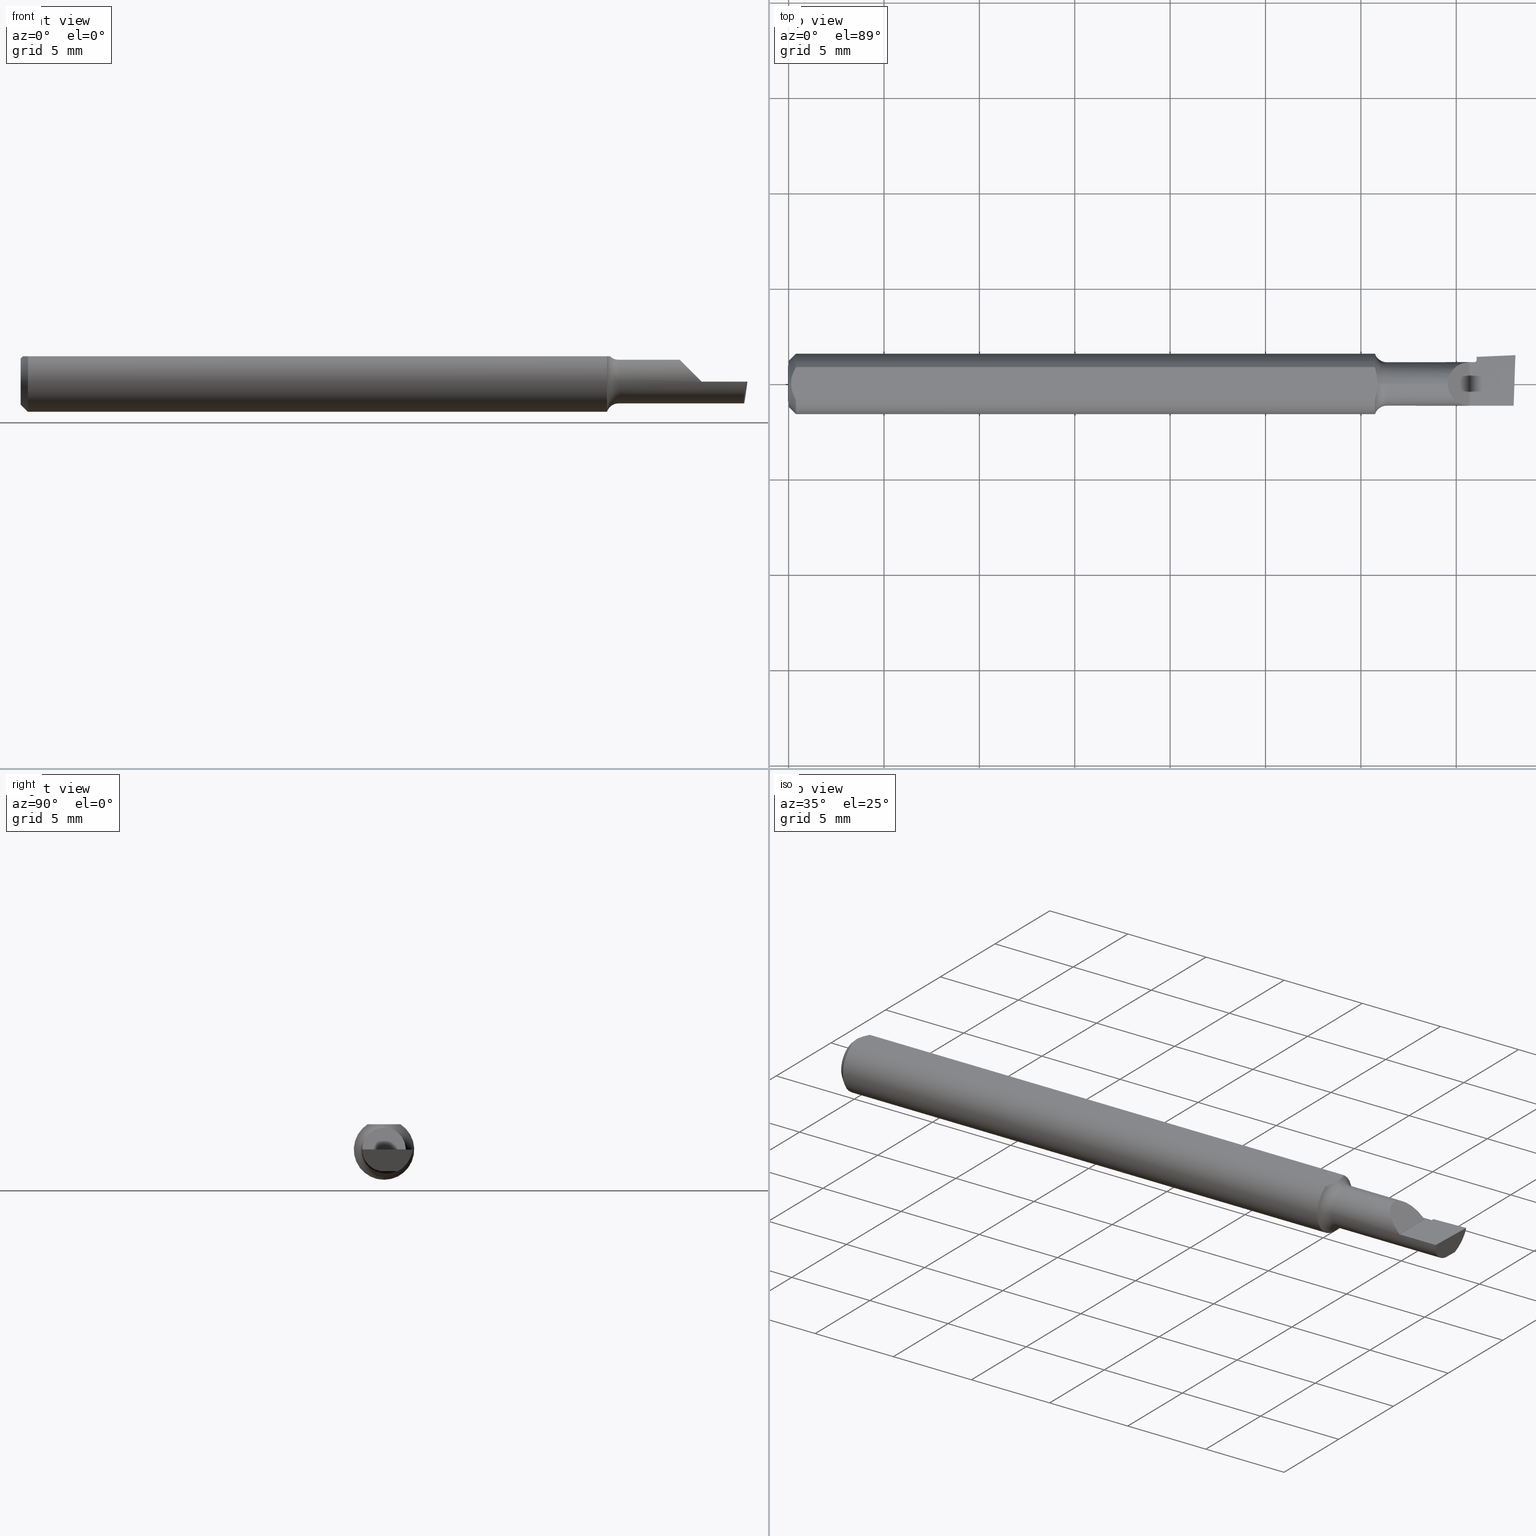
[diagram: canonical four-view strip — front | top / right | iso, engineering-drawing reading convention]
A machine part, canonical four-view strip (front | top / right | iso — engineering-drawing reading convention). The complete STEP part file that produces these views, byte-faithful:
ISO-10303-21;
HEADER;
FILE_DESCRIPTION (( 'STEP AP203' ),
    '1' );
FILE_NAME ('210201-BB102.STEP',
    '2024-04-17T20:57:02',
    ( '' ),
    ( '' ),
    'SwSTEP 2.0',
    'SolidWorks 2022',
    '' );
FILE_SCHEMA (( 'CONFIG_CONTROL_DESIGN' ));
ENDSEC;

DATA;
#1 = CARTESIAN_POINT ( 'NONE',  ( 1.439086209087548029, 0.06159508375131486635, -0.4962730758206618797 ) ) ;
#2 = EDGE_CURVE ( 'NONE', #540, #177, #97, .T. ) ;
#3 = DIRECTION ( 'NONE',  ( 1.000000000000000000, 0.000000000000000000, 0.000000000000000000 ) ) ;
#4 = DIRECTION ( 'NONE',  ( -1.000000000000000000, 0.000000000000000000, 0.000000000000000000 ) ) ;
#5 = CARTESIAN_POINT ( 'NONE',  ( 1.405000000000000249, -0.04499999999999999833, -1.868634782302818344E-17 ) ) ;
#6 = DIRECTION ( 'NONE',  ( 1.000000000000000000, 0.000000000000000000, 0.000000000000000000 ) ) ;
#7 = VECTOR ( 'NONE', #249, 39.37007874015748143 ) ;
#8 = CARTESIAN_POINT ( 'NONE',  ( 1.352999999999999980, 0.04793338999999999933, 0.05235000000000000764 ) ) ;
#9 = ORIENTED_EDGE ( 'NONE', *, *, #466, .T. ) ;
#10 = EDGE_CURVE ( 'NONE', #230, #332, #533, .T. ) ;
#11 = CARTESIAN_POINT ( 'NONE',  ( 0.000000000000000000, 0.000000000000000000, 0.04499999999999999833 ) ) ;
#12 = LINE ( 'NONE', #582, #58 ) ;
#13 =( NAMED_UNIT ( * ) PLANE_ANGLE_UNIT ( ) SI_UNIT ( $, .RADIAN. ) );
#14 = CARTESIAN_POINT ( 'NONE',  ( 1.420000000000000151, 0.000000000000000000, 0.000000000000000000 ) ) ;
#15 = AXIS2_PLACEMENT_3D ( 'NONE', #14, #211, #405 ) ;
#16 = CIRCLE ( 'NONE', #350, 0.06235000000000000264 ) ;
#17 = PERSON_AND_ORGANIZATION ( #194, #202 ) ;
#18 = FACE_OUTER_BOUND ( 'NONE', #138, .T. ) ;
#19 = ORIENTED_EDGE ( 'NONE', *, *, #190, .F. ) ;
#20 = CC_DESIGN_DATE_AND_TIME_ASSIGNMENT ( #178, #543, ( #308 ) ) ;
#21 = CARTESIAN_POINT ( 'NONE',  ( 1.216294704182079744, 0.005727781574962463422, 0.05235000000000000764 ) ) ;
#22 = VERTEX_POINT ( 'NONE', #380 ) ;
#23 = APPLICATION_PROTOCOL_DEFINITION ( 'international standard', 'config_control_design', 1994, #261 ) ;
#24 = CARTESIAN_POINT ( 'NONE',  ( 0.000000000000000000, 0.000000000000000000, 0.000000000000000000 ) ) ;
#25 = UNCERTAINTY_MEASURE_WITH_UNIT (LENGTH_MEASURE( 1.000000000000000082E-05 ), #597, 'distance_accuracy_value', 'NONE');
#26 = VERTEX_POINT ( 'NONE', #201 ) ;
#27 = ADVANCED_FACE ( 'NONE', ( #394 ), #528, .F. ) ;
#28 = CIRCLE ( 'NONE', #15, 0.04999999999999999584 ) ;
#29 = DATE_TIME_ROLE ( 'classification_date' ) ;
#30 = LOCAL_TIME ( 13, 57, 2.000000000000000000, #590 ) ;
#31 = DIRECTION ( 'NONE',  ( -1.000000000000000000, -0.000000000000000000, -0.000000000000000000 ) ) ;
#32 = ORIENTED_EDGE ( 'NONE', *, *, #161, .T. ) ;
#33 = MANIFOLD_SOLID_BREP ( 'CR-Radial Relief', #171 ) ;
#34 = ADVANCED_FACE ( 'NONE', ( #252 ), #149, .F. ) ;
#35 = DIRECTION ( 'NONE',  ( 1.000000000000000000, 0.000000000000000000, 0.000000000000000000 ) ) ;
#36 = ORIENTED_EDGE ( 'NONE', *, *, #224, .F. ) ;
#37 = DIRECTION ( 'NONE',  ( 0.000000000000000000, -1.224646799147353454E-16, 1.000000000000000000 ) ) ;
#38 = ORIENTED_EDGE ( 'NONE', *, *, #372, .T. ) ;
#39 = CARTESIAN_POINT ( 'NONE',  ( 1.420000000000000151, 0.02453648890686001630, -0.04499999999999994976 ) ) ;
#40 = CONICAL_SURFACE ( 'NONE', #391, 0.06235000000000000264, 0.7853981633974503884 ) ;
#41 = VERTEX_POINT ( 'NONE', #437 ) ;
#42 = EDGE_CURVE ( 'NONE', #26, #192, #12, .T. ) ;
#43 = CARTESIAN_POINT ( 'NONE',  ( 0.01500000000000134386, -0.03386738844375219992, 0.05235000000000000764 ) ) ;
#44 = ORIENTED_EDGE ( 'NONE', *, *, #300, .T. ) ;
#45 = APPROVAL_DATE_TIME ( #324, #517 ) ;
#46 = DIRECTION ( 'NONE',  ( -0.000000000000000000, 0.000000000000000000, 1.000000000000000000 ) ) ;
#47 = CARTESIAN_POINT ( 'NONE',  ( 1.378802680697162275, 0.04479487577709501817, 0.02654731930283728628 ) ) ;
#48 = CARTESIAN_POINT ( 'NONE',  ( 1.497408718177534404, 0.05935011133167062553, -1.920830620545185230E-17 ) ) ;
#49 = APPROVAL ( #174, 'UNSPECIFIED' ) ;
#50 = AXIS2_PLACEMENT_3D ( 'NONE', #373, #89, #428 ) ;
#51 = CARTESIAN_POINT ( 'NONE',  ( 0.01215148319993578432, 0.02862325741844273796, 0.05235000000000001458 ) ) ;
#52 = CARTESIAN_POINT ( 'NONE',  ( 1.233999999999999986, 0.000000000000000000, 0.07000000000000000666 ) ) ;
#53 = CARTESIAN_POINT ( 'NONE',  ( 0.01500000000000134386, -0.03386738844375219992, 0.05235000000000000764 ) ) ;
#54 = CARTESIAN_POINT ( 'NONE',  ( 1.492272597867730255, -0.003209992909856810607, -0.04499999999999994976 ) ) ;
#55 = DIRECTION ( 'NONE',  ( 0.1219375329434578548, 0.000000000000000000, 0.9925377766411024316 ) ) ;
#56 = FACE_OUTER_BOUND ( 'NONE', #233, .T. ) ;
#57 = CARTESIAN_POINT ( 'NONE',  ( 1.360350000000000170, -0.02619811172684342881, 0.04499999999999999833 ) ) ;
#58 = VECTOR ( 'NONE', #115, 39.37007874015748143 ) ;
#59 = VERTEX_POINT ( 'NONE', #576 ) ;
#60 = CIRCLE ( 'NONE', #285, 0.04734999999999860154 ) ;
#61 = EDGE_CURVE ( 'NONE', #367, #444, #399, .T. ) ;
#62 = EDGE_CURVE ( 'NONE', #378, #406, #141, .T. ) ;
#63 =( BOUNDED_CURVE ( )  B_SPLINE_CURVE ( 3, ( #397, #585, #127, #314 ),
 .UNSPECIFIED., .F., .T. ) 
 B_SPLINE_CURVE_WITH_KNOTS ( ( 4, 4 ),
 ( 4.195518992949612169, 5.146384001927089002 ),
 .UNSPECIFIED. ) 
 CURVE ( )  GEOMETRIC_REPRESENTATION_ITEM ( )  RATIONAL_B_SPLINE_CURVE ( ( 1.000000000000000000, 0.9260632250149676281, 0.9260632250149676281, 1.000000000000000000 ) ) 
 REPRESENTATION_ITEM ( '' )  );
#64 = LINE ( 'NONE', #478, #393 ) ;
#65 = DIRECTION ( 'NONE',  ( 1.000000000000000000, 0.000000000000000000, 0.000000000000000000 ) ) ;
#66 = DATE_AND_TIME ( #364, #30 ) ;
#67 = CARTESIAN_POINT ( 'NONE',  ( 1.405000000000000249, 0.000000000000000000, 0.000000000000000000 ) ) ;
#68 = ADVANCED_FACE ( 'NONE', ( #483 ), #560, .F. ) ;
#69 = DIRECTION ( 'NONE',  ( 0.000000000000000000, 0.000000000000000000, 1.000000000000000000 ) ) ;
#70 = CARTESIAN_POINT ( 'NONE',  ( 1.498778539966121537, 0.02797603424273678932, -0.04499999999999995670 ) ) ;
#71 = ORIENTED_EDGE ( 'NONE', *, *, #539, .T. ) ;
#72 = VECTOR ( 'NONE', #335, 39.37007874015748143 ) ;
#73 = CC_DESIGN_APPROVAL ( #355, ( #308 ) ) ;
#74 = B_SPLINE_CURVE_WITH_KNOTS ( 'NONE', 3,
 ( #535, #162, #490, #289, #108, #53 ),
 .UNSPECIFIED., .F., .F.,
 ( 4, 2, 4 ),
 ( 0.003138065481210369073, 0.003587221268395912946, 0.004036377055581456819 ),
 .UNSPECIFIED. ) ;
#75 = CARTESIAN_POINT ( 'NONE',  ( 1.210199212197912599, 0.03386738844375219298, 0.05235000000000000764 ) ) ;
#76 = ORIENTED_EDGE ( 'NONE', *, *, #84, .F. ) ;
#77 = CARTESIAN_POINT ( 'NONE',  ( 1.435446859173552969, -0.04340526729089896202, -0.4961638572300726135 ) ) ;
#78 = ORIENTED_EDGE ( 'NONE', *, *, #619, .T. ) ;
#79 = ADVANCED_FACE ( 'NONE', ( #538 ), #198, .F. ) ;
#80 = CALENDAR_DATE ( 2024, 17, 4 ) ;
#81 = CARTESIAN_POINT ( 'NONE',  ( 1.405000000000000249, 0.04499999999999999833, -1.868634782302818344E-17 ) ) ;
#82 = ADVANCED_BREP_SHAPE_REPRESENTATION ( '210201-BB102', ( #33, #424 ), #173 ) ;
#83 = EDGE_LOOP ( 'NONE', ( #413, #219, #458, #71, #605 ) ) ;
#84 = EDGE_CURVE ( 'NONE', #177, #444, #74, .T. ) ;
#85 = AXIS2_PLACEMENT_3D ( 'NONE', #269, #386, #239 ) ;
#86 = CC_DESIGN_SECURITY_CLASSIFICATION ( #103, ( #376 ) ) ;
#87 = LINE ( 'NONE', #447, #114 ) ;
#88 = VERTEX_POINT ( 'NONE', #579 ) ;
#89 = DIRECTION ( 'NONE',  ( -1.000000000000000000, -0.000000000000000000, -0.000000000000000000 ) ) ;
#90 = ORIENTED_EDGE ( 'NONE', *, *, #568, .T. ) ;
#91 = FACE_OUTER_BOUND ( 'NONE', #118, .T. ) ;
#92 = DIRECTION ( 'NONE',  ( 1.000000000000000000, -0.000000000000000000, -0.000000000000000000 ) ) ;
#93 = AXIS2_PLACEMENT_3D ( 'NONE', #573, #92, #472 ) ;
#94 = ORIENTED_EDGE ( 'NONE', *, *, #568, .F. ) ;
#95 = CARTESIAN_POINT ( 'NONE',  ( 1.417373594790450664, 0.007104973877921498190, -0.04499999999999993588 ) ) ;
#96 = ORIENTED_EDGE ( 'NONE', *, *, #459, .F. ) ;
#97 = B_SPLINE_CURVE_WITH_KNOTS ( 'NONE', 3,
 ( #479, #51, #281, #476, #435, #323 ),
 .UNSPECIFIED., .F., .F.,
 ( 4, 2, 4 ),
 ( 0.002239757098154139970, 0.002688911289682254738, 0.003138065481210369073 ),
 .UNSPECIFIED. ) ;
#98 = CARTESIAN_POINT ( 'NONE',  ( 1.491469573703458229, -0.02629326065177165980, -0.04500000000000010936 ) ) ;
#99 = ORIENTED_EDGE ( 'NONE', *, *, #154, .F. ) ;
#100 = CYLINDRICAL_SURFACE ( 'NONE', #580, 0.04499999999999999833 ) ;
#101 = TOROIDAL_SURFACE ( 'NONE', #172, 0.07000000000000000666, 0.02499999999999987302 ) ;
#102 = DIRECTION ( 'NONE',  ( 0.000000000000000000, 0.000000000000000000, 1.000000000000000000 ) ) ;
#103 = SECURITY_CLASSIFICATION ( '', '', #506 ) ;
#104 = B_SPLINE_CURVE_WITH_KNOTS ( 'NONE', 3,
 ( #121, #417, #266, #169, #176, #604 ),
 .UNSPECIFIED., .F., .F.,
 ( 4, 2, 4 ),
 ( 7.997048211592323728E-18, 0.0004371228731191618977, 0.0008742457462383155554 ),
 .UNSPECIFIED. ) ;
#105 = DIRECTION ( 'NONE',  ( 0.000000000000000000, -1.000000000000000000, 0.000000000000000000 ) ) ;
#106 = FACE_OUTER_BOUND ( 'NONE', #382, .T. ) ;
#107 = CARTESIAN_POINT ( 'NONE',  ( 0.01500000000000134212, 7.635672792683746671E-18, 0.06235000000000000264 ) ) ;
#108 = CARTESIAN_POINT ( 'NONE',  ( 0.01215371382284740828, -0.02862736400430402478, 0.05235000000000000764 ) ) ;
#109 = EDGE_CURVE ( 'NONE', #540, #406, #256, .T. ) ;
#110 = PRODUCT_DEFINITION_SHAPE ( 'NONE', 'NONE',  #308 ) ;
#111 = DIRECTION ( 'NONE',  ( 0.000000000000000000, 0.000000000000000000, -1.000000000000000000 ) ) ;
#112 = DIRECTION ( 'NONE',  ( 0.000000000000000000, 0.000000000000000000, -1.000000000000000000 ) ) ;
#113 = AXIS2_PLACEMENT_3D ( 'NONE', #157, #242, #4 ) ;
#114 = VECTOR ( 'NONE', #503, 39.37007874015748143 ) ;
#115 = DIRECTION ( 'NONE',  ( -1.000000000000000000, -0.000000000000000000, -0.000000000000000000 ) ) ;
#116 = ADVANCED_FACE ( 'NONE', ( #106 ), #302, .F. ) ;
#117 = MECHANICAL_CONTEXT ( 'NONE', #602, 'mechanical' ) ;
#118 = EDGE_LOOP ( 'NONE', ( #420, #237, #267, #371, #465 ) ) ;
#119 = B_SPLINE_CURVE_WITH_KNOTS ( 'NONE', 3,
 ( #431, #384, #95, #146, #232, #280 ),
 .UNSPECIFIED., .F., .F.,
 ( 4, 2, 4 ),
 ( -6.761656630398362563E-06, 0.0002785398825096111353, 0.0005638414216496206392 ),
 .UNSPECIFIED. ) ;
#120 = CC_DESIGN_PERSON_AND_ORGANIZATION_ASSIGNMENT ( #310, #502, ( #376 ) ) ;
#121 = CARTESIAN_POINT ( 'NONE',  ( 1.216294704182081743, 5.980258425352743234E-45, 0.05235000000000000764 ) ) ;
#122 = ORIENTED_EDGE ( 'NONE', *, *, #365, .F. ) ;
#123 = AXIS2_PLACEMENT_3D ( 'NONE', #52, #105, #445 ) ;
#124 = DIRECTION ( 'NONE',  ( 1.000000000000000000, 0.000000000000000000, 0.000000000000000000 ) ) ;
#125 = DIRECTION ( 'NONE',  ( 0.000000000000000000, 0.000000000000000000, 1.000000000000000000 ) ) ;
#126 = ORIENTED_EDGE ( 'NONE', *, *, #334, .T. ) ;
#127 = CARTESIAN_POINT ( 'NONE',  ( 1.497480812834090846, 0.05671465393456243120, -0.01957518843765980107 ) ) ;
#128 = ORIENTED_EDGE ( 'NONE', *, *, #619, .F. ) ;
#129 = EDGE_CURVE ( 'NONE', #230, #168, #238, .T. ) ;
#130 = DIRECTION ( 'NONE',  ( 1.000000000000000000, 1.790984261580614452E-17, -6.284155303791548068E-17 ) ) ;
#131 = ORIENTED_EDGE ( 'NONE', *, *, #84, .T. ) ;
#132 = AXIS2_PLACEMENT_3D ( 'NONE', #8, #438, #436 ) ;
#133 = AXIS2_PLACEMENT_3D ( 'NONE', #199, #392, #581 ) ;
#134 = DIRECTION ( 'NONE',  ( 0.000000000000000000, 0.000000000000000000, 1.000000000000000000 ) ) ;
#135 = ORIENTED_EDGE ( 'NONE', *, *, #334, .F. ) ;
#136 = EDGE_CURVE ( 'NONE', #332, #240, #359, .T. ) ;
#137 = DIRECTION ( 'NONE',  ( 0.000000000000000000, 0.000000000000000000, 1.000000000000000000 ) ) ;
#138 = EDGE_LOOP ( 'NONE', ( #90, #38, #226, #515, #260 ) ) ;
#139 = CARTESIAN_POINT ( 'NONE',  ( 0.000000000000000000, 0.000000000000000000, 0.000000000000000000 ) ) ;
#140 = ORIENTED_EDGE ( 'NONE', *, *, #584, .T. ) ;
#141 = CIRCLE ( 'NONE', #248, 0.06235000000000000264 ) ;
#142 = DIRECTION ( 'NONE',  ( -1.000000000000000000, 0.000000000000000000, 0.000000000000000000 ) ) ;
#143 = AXIS2_PLACEMENT_3D ( 'NONE', #304, #552, #409 ) ;
#144 = EDGE_CURVE ( 'NONE', #230, #240, #387, .T. ) ;
#145 = ORIENTED_EDGE ( 'NONE', *, *, #550, .F. ) ;
#146 = CARTESIAN_POINT ( 'NONE',  ( 1.419267150108719511, 0.01435586655772894821, -0.04499999999999993588 ) ) ;
#147 = ORIENTED_EDGE ( 'NONE', *, *, #346, .F. ) ;
#148 = CARTESIAN_POINT ( 'NONE',  ( 0.000000000000000000, 6.717187693323146747E-18, 0.04734999999999860154 ) ) ;
#149 = PLANE ( 'NONE',  #520 ) ;
#150 = CARTESIAN_POINT ( 'NONE',  ( 1.493102199893894255, -0.04491525817069149523, -0.02643775972283102238 ) ) ;
#151 = CIRCLE ( 'NONE', #220, 0.06235000000000000264 ) ;
#152 = CARTESIAN_POINT ( 'NONE',  ( 1.405000000000000249, 0.07629532499999999717, -1.868634782302818344E-17 ) ) ;
#153 = CC_DESIGN_APPROVAL ( #517, ( #103 ) ) ;
#154 = EDGE_CURVE ( 'NONE', #592, #521, #63, .T. ) ;
#155 = LINE ( 'NONE', #398, #287 ) ;
#156 = B_SPLINE_CURVE_WITH_KNOTS ( 'NONE', 3,
 ( #75, #496, #165, #311, #21, #369 ),
 .UNSPECIFIED., .F., .F.,
 ( 4, 2, 4 ),
 ( 0.008461957719256174570, 0.008892358141365519497, 0.009322758563474862689 ),
 .UNSPECIFIED. ) ;
#157 = CARTESIAN_POINT ( 'NONE',  ( 0.000000000000000000, 0.04793338999999999933, 0.05235000000000000764 ) ) ;
#158 = CARTESIAN_POINT ( 'NONE',  ( 1.420000000000000151, 0.02179449471770346022, -0.04499999999999994976 ) ) ;
#159 = DIRECTION ( 'NONE',  ( 0.000000000000000000, 0.000000000000000000, 1.000000000000000000 ) ) ;
#160 = EDGE_LOOP ( 'NONE', ( #94, #548, #470, #126, #283, #362 ) ) ;
#161 = EDGE_CURVE ( 'NONE', #59, #315, #203, .T. ) ;
#162 = CARTESIAN_POINT ( 'NONE',  ( 0.005000000000001387016, -0.005922428141025059233, 0.05235000000000002152 ) ) ;
#163 = VECTOR ( 'NONE', #547, 39.37007874015748854 ) ;
#164 = CALENDAR_DATE ( 2024, 17, 4 ) ;
#165 = CARTESIAN_POINT ( 'NONE',  ( 1.212665865278044652, 0.02264566276758899627, 0.05235000000000001458 ) ) ;
#166 = PERSON_AND_ORGANIZATION ( #194, #202 ) ;
#167 = LINE ( 'NONE', #357, #383 ) ;
#168 = VERTEX_POINT ( 'NONE', #81 ) ;
#169 = CARTESIAN_POINT ( 'NONE',  ( 1.212662726067923025, -0.02265753296402302913, 0.05235000000000000764 ) ) ;
#170 = ORIENTED_EDGE ( 'NONE', *, *, #224, .T. ) ;
#171 = CLOSED_SHELL ( 'NONE', ( #182, #175, #448, #333, #34, #395, #27, #295, #513, #234, #512, #505, #116, #415, #79, #68, #477 ) ) ;
#172 = AXIS2_PLACEMENT_3D ( 'NONE', #258, #507, #179 ) ;
#173 =( GEOMETRIC_REPRESENTATION_CONTEXT ( 3 ) GLOBAL_UNCERTAINTY_ASSIGNED_CONTEXT ( ( #25 ) ) GLOBAL_UNIT_ASSIGNED_CONTEXT ( ( #597, #13, #498 ) ) REPRESENTATION_CONTEXT ( 'NONE', 'WORKASPACE' ) );
#174 = APPROVAL_STATUS ( 'not_yet_approved' ) ;
#175 = ADVANCED_FACE ( 'NONE', ( #18 ), #101, .F. ) ;
#176 = CARTESIAN_POINT ( 'NONE',  ( 1.211183353785425298, -0.02823046378080374536, 0.05235000000000000070 ) ) ;
#177 = VERTEX_POINT ( 'NONE', #411 ) ;
#178 = DATE_AND_TIME ( #164, #450 ) ;
#179 = DIRECTION ( 'NONE',  ( 0.000000000000000000, 0.000000000000000000, 1.000000000000000000 ) ) ;
#180 = ORIENTED_EDGE ( 'NONE', *, *, #288, .T. ) ;
#181 = PLANE ( 'NONE',  #337 ) ;
#182 = ADVANCED_FACE ( 'NONE', ( #222 ), #557, .T. ) ;
#183 = ORIENTED_EDGE ( 'NONE', *, *, #345, .T. ) ;
#184 = CC_DESIGN_PERSON_AND_ORGANIZATION_ASSIGNMENT ( #17, #213, ( #492 ) ) ;
#185 = VECTOR ( 'NONE', #218, 39.37007874015748854 ) ;
#186 = LOCAL_TIME ( 13, 57, 2.000000000000000000, #356 ) ;
#187 = DIRECTION ( 'NONE',  ( -0.000000000000000000, -0.000000000000000000, -1.000000000000000000 ) ) ;
#188 = CARTESIAN_POINT ( 'NONE',  ( 1.420000000000000151, 0.05597037370670018830, -1.894732701424001633E-17 ) ) ;
#189 = ORIENTED_EDGE ( 'NONE', *, *, #42, .T. ) ;
#190 = EDGE_CURVE ( 'NONE', #88, #215, #500, .T. ) ;
#191 = CARTESIAN_POINT ( 'NONE',  ( 1.420000000000000151, 0.04499999999999999833, 0.000000000000000000 ) ) ;
#192 = VERTEX_POINT ( 'NONE', #600 ) ;
#193 = AXIS2_PLACEMENT_3D ( 'NONE', #139, #565, #325 ) ;
#194 = PERSON ( 'UNSPECIFIED', 'UNSPECIFIED', 'UNSPECIFIED', ('UNSPECIFIED'), ('UNSPECIFIED'), ('UNSPECIFIED') ) ;
#195 = CARTESIAN_POINT ( 'NONE',  ( 0.000000000000000000, 0.04499999999999999833, -1.868634782302818344E-17 ) ) ;
#196 = CARTESIAN_POINT ( 'NONE',  ( 1.496329483393618709, -0.04499976756329679417, -0.0001446348825885092598 ) ) ;
#197 = FACE_OUTER_BOUND ( 'NONE', #553, .T. ) ;
#198 = PLANE ( 'NONE',  #433 ) ;
#199 = CARTESIAN_POINT ( 'NONE',  ( 1.233999999999999986, 0.000000000000000000, 0.000000000000000000 ) ) ;
#200 = CIRCLE ( 'NONE', #93, 0.06235000000000000264 ) ;
#201 = CARTESIAN_POINT ( 'NONE',  ( 1.415000000000000036, 1.824590875493064959E-16, -0.04499999999999993588 ) ) ;
#202 = ORGANIZATION ( 'UNSPECIFIED', 'UNSPECIFIED', '' ) ;
#203 = LINE ( 'NONE', #77, #163 ) ;
#204 = EDGE_LOOP ( 'NONE', ( #570, #309, #469, #330, #278 ) ) ;
#205 = CARTESIAN_POINT ( 'NONE',  ( 1.493349255586110091, 0.02773898656738708543, -0.04499999999999995670 ) ) ;
#206 = DIRECTION ( 'NONE',  ( -1.000000000000000000, 0.000000000000000000, 0.000000000000000000 ) ) ;
#207 = ORIENTED_EDGE ( 'NONE', *, *, #129, .T. ) ;
#208 = FACE_OUTER_BOUND ( 'NONE', #558, .T. ) ;
#209 = AXIS2_PLACEMENT_3D ( 'NONE', #360, #31, #366 ) ;
#210 = APPROVAL_DATE_TIME ( #313, #355 ) ;
#211 = DIRECTION ( 'NONE',  ( 1.000000000000000000, 0.000000000000000000, 0.000000000000000000 ) ) ;
#212 = ORIENTED_EDGE ( 'NONE', *, *, #255, .F. ) ;
#213 = PERSON_AND_ORGANIZATION_ROLE ( 'design_owner' ) ;
#214 = CARTESIAN_POINT ( 'NONE',  ( 0.000000000000000000, 0.000000000000000000, 0.000000000000000000 ) ) ;
#215 = VERTEX_POINT ( 'NONE', #509 ) ;
#216 = EDGE_CURVE ( 'NONE', #22, #367, #104, .T. ) ;
#217 = CALENDAR_DATE ( 2024, 17, 4 ) ;
#218 = DIRECTION ( 'NONE',  ( 0.7071067811865460184, 0.000000000000000000, -0.7071067811865489050 ) ) ;
#219 = ORIENTED_EDGE ( 'NONE', *, *, #62, .T. ) ;
#220 = AXIS2_PLACEMENT_3D ( 'NONE', #425, #331, #514 ) ;
#221 = PERSON_AND_ORGANIZATION ( #194, #202 ) ;
#222 = FACE_OUTER_BOUND ( 'NONE', #321, .T. ) ;
#223 = EDGE_LOOP ( 'NONE', ( #491, #358, #497, #135, #19 ) ) ;
#224 = EDGE_CURVE ( 'NONE', #556, #26, #328, .T. ) ;
#225 = CARTESIAN_POINT ( 'NONE',  ( 1.233999999999999986, 8.572527594031471957E-18, -0.07000000000000000666 ) ) ;
#226 = ORIENTED_EDGE ( 'NONE', *, *, #346, .T. ) ;
#227 = DIRECTION ( 'NONE',  ( 0.000000000000000000, 0.000000000000000000, -1.000000000000000000 ) ) ;
#228 = ORIENTED_EDGE ( 'NONE', *, *, #440, .F. ) ;
#229 = CARTESIAN_POINT ( 'NONE',  ( 1.420000000000000151, 0.04201724781223283717, -0.03577278660894834400 ) ) ;
#230 = VERTEX_POINT ( 'NONE', #451 ) ;
#231 = CALENDAR_DATE ( 2024, 17, 4 ) ;
#232 = CARTESIAN_POINT ( 'NONE',  ( 1.419999999999999929, 0.01802711815188125927, -0.04499999999999995670 ) ) ;
#233 = EDGE_LOOP ( 'NONE', ( #566, #305, #456 ) ) ;
#234 = ADVANCED_FACE ( 'NONE', ( #403 ), #480, .F. ) ;
#235 = EDGE_CURVE ( 'NONE', #518, #88, #60, .T. ) ;
#236 = DIRECTION ( 'NONE',  ( 0.03476711780021052994, 0.9993954410141494549, 0.000000000000000000 ) ) ;
#237 = ORIENTED_EDGE ( 'NONE', *, *, #279, .T. ) ;
#238 = CIRCLE ( 'NONE', #361, 0.04499999999999999833 ) ;
#239 = DIRECTION ( 'NONE',  ( 0.000000000000000000, 0.000000000000000000, -1.000000000000000000 ) ) ;
#240 = VERTEX_POINT ( 'NONE', #455 ) ;
#241 = CYLINDRICAL_SURFACE ( 'NONE', #598, 0.05994289329491143958 ) ;
#242 = DIRECTION ( 'NONE',  ( -0.000000000000000000, 0.000000000000000000, -1.000000000000000000 ) ) ;
#243 = CC_DESIGN_PERSON_AND_ORGANIZATION_ASSIGNMENT ( #603, #546, ( #308 ) ) ;
#244 = DIRECTION ( 'NONE',  ( -1.000000000000000000, -0.000000000000000000, -0.000000000000000000 ) ) ;
#245 = DIRECTION ( 'NONE',  ( -0.000000000000000000, 0.000000000000000000, -1.000000000000000000 ) ) ;
#246 = CC_DESIGN_DATE_AND_TIME_ASSIGNMENT ( #254, #29, ( #103 ) ) ;
#247 = DIRECTION ( 'NONE',  ( -1.000000000000000000, -0.000000000000000000, -0.000000000000000000 ) ) ;
#248 = AXIS2_PLACEMENT_3D ( 'NONE', #439, #6, #112 ) ;
#249 = DIRECTION ( 'NONE',  ( 0.000000000000000000, -1.000000000000000000, 0.000000000000000000 ) ) ;
#250 = EDGE_CURVE ( 'NONE', #406, #22, #156, .T. ) ;
#251 = DIRECTION ( 'NONE',  ( -0.000000000000000000, 1.000000000000000000, -0.000000000000000000 ) ) ;
#252 = FACE_OUTER_BOUND ( 'NONE', #501, .T. ) ;
#253 = ORIENTED_EDGE ( 'NONE', *, *, #136, .F. ) ;
#254 = DATE_AND_TIME ( #80, #186 ) ;
#255 = EDGE_CURVE ( 'NONE', #452, #426, #28, .T. ) ;
#256 = LINE ( 'NONE', #294, #298 ) ;
#257 = LENGTH_MEASURE_WITH_UNIT ( LENGTH_MEASURE( 0.02539999999999999897 ), #493 );
#258 = CARTESIAN_POINT ( 'NONE',  ( 1.233999999999999986, 0.000000000000000000, 0.000000000000000000 ) ) ;
#259 = AXIS2_PLACEMENT_3D ( 'NONE', #225, #468, #37 ) ;
#260 = ORIENTED_EDGE ( 'NONE', *, *, #216, .T. ) ;
#261 = APPLICATION_CONTEXT ( 'configuration controlled 3d designs of mechanical parts and assemblies' ) ;
#262 = ORIENTED_EDGE ( 'NONE', *, *, #577, .T. ) ;
#263 = CARTESIAN_POINT ( 'NONE',  ( 0.01500000000000134212, 0.000000000000000000, -0.06235000000000000264 ) ) ;
#264 = VERTEX_POINT ( 'NONE', #555 ) ;
#265 = APPROVAL_ROLE ( '' ) ;
#266 = CARTESIAN_POINT ( 'NONE',  ( 1.215248991601179496, -0.01145844255424206121, 0.05235000000000001458 ) ) ;
#267 = ORIENTED_EDGE ( 'NONE', *, *, #474, .T. ) ;
#268 = CONICAL_SURFACE ( 'NONE', #85, 0.06235000000000000264, 0.7853981633974503884 ) ;
#269 = CARTESIAN_POINT ( 'NONE',  ( 0.01500000000000134212, 0.000000000000000000, 0.000000000000000000 ) ) ;
#270 = ORIENTED_EDGE ( 'NONE', *, *, #326, .T. ) ;
#271 = FACE_OUTER_BOUND ( 'NONE', #340, .T. ) ;
#272 = VERTEX_POINT ( 'NONE', #591 ) ;
#273 = DIRECTION ( 'NONE',  ( 0.000000000000000000, -1.000000000000000000, 2.151128098472149687E-16 ) ) ;
#274 = VERTEX_POINT ( 'NONE', #353 ) ;
#275 = AXIS2_PLACEMENT_3D ( 'NONE', #24, #277, #227 ) ;
#276 = APPROVAL_PERSON_ORGANIZATION ( #221, #517, #495 ) ;
#277 = DIRECTION ( 'NONE',  ( 1.000000000000000000, 0.000000000000000000, 0.000000000000000000 ) ) ;
#278 = ORIENTED_EDGE ( 'NONE', *, *, #459, .T. ) ;
#279 = EDGE_CURVE ( 'NONE', #264, #592, #457, .T. ) ;
#280 = CARTESIAN_POINT ( 'NONE',  ( 1.420000000000000151, 0.02179449471770346022, -0.04499999999999994976 ) ) ;
#281 = CARTESIAN_POINT ( 'NONE',  ( 0.009665130484206837028, 0.02321408954762991736, 0.05235000000000001458 ) ) ;
#282 = DIRECTION ( 'NONE',  ( -0.04361938736533653438, 0.9990482215818576872, 0.000000000000000000 ) ) ;
#283 = ORIENTED_EDGE ( 'NONE', *, *, #109, .T. ) ;
#284 = EDGE_CURVE ( 'NONE', #26, #272, #167, .T. ) ;
#285 = AXIS2_PLACEMENT_3D ( 'NONE', #214, #461, #316 ) ;
#286 = DIRECTION ( 'NONE',  ( 0.000000000000000000, 0.000000000000000000, 1.000000000000000000 ) ) ;
#287 = VECTOR ( 'NONE', #586, 39.37007874015748143 ) ;
#288 = EDGE_CURVE ( 'NONE', #426, #41, #87, .T. ) ;
#289 = CARTESIAN_POINT ( 'NONE',  ( 0.009663423781324993397, -0.02320891702790696398, 0.05234999999999998682 ) ) ;
#290 = LINE ( 'NONE', #107, #571 ) ;
#291 = CARTESIAN_POINT ( 'NONE',  ( 1.360350000000000170, 0.000000000000000000, 0.04499999999999999833 ) ) ;
#292 = ORIENTED_EDGE ( 'NONE', *, *, #524, .F. ) ;
#293 = CARTESIAN_POINT ( 'NONE',  ( 1.500000000000000222, 1.707404996040164512E-17, 0.008000000000000000167 ) ) ;
#294 = CARTESIAN_POINT ( 'NONE',  ( 1.500000000000000222, 0.03386738844375219298, 0.05235000000000000764 ) ) ;
#295 = ADVANCED_FACE ( 'NONE', ( #208 ), #544, .F. ) ;
#296 = ORIENTED_EDGE ( 'NONE', *, *, #430, .T. ) ;
#297 = CARTESIAN_POINT ( 'NONE',  ( 1.415000000000000036, 0.04499999999999999833, -1.868634782302818344E-17 ) ) ;
#298 = VECTOR ( 'NONE', #65, 39.37007874015748143 ) ;
#299 = DIRECTION ( 'NONE',  ( -1.000000000000000000, -0.000000000000000000, -0.000000000000000000 ) ) ;
#300 = EDGE_CURVE ( 'NONE', #609, #240, #549, .T. ) ;
#301 = PERSON_AND_ORGANIZATION ( #194, #202 ) ;
#302 = PLANE ( 'NONE',  #412 ) ;
#303 = APPROVAL_DATE_TIME ( #66, #49 ) ;
#304 = CARTESIAN_POINT ( 'NONE',  ( 1.415000000000000036, 0.000000000000000000, 0.000000000000000000 ) ) ;
#305 = ORIENTED_EDGE ( 'NONE', *, *, #10, .T. ) ;
#306 = PERSON_AND_ORGANIZATION ( #194, #202 ) ;
#307 = DIRECTION ( 'NONE',  ( -1.000000000000000000, -0.000000000000000000, -0.000000000000000000 ) ) ;
#308 = PRODUCT_DEFINITION ( 'UNKNOWN', '', #376, #370 ) ;
#309 = ORIENTED_EDGE ( 'NONE', *, *, #154, .T. ) ;
#310 = PERSON_AND_ORGANIZATION ( #194, #202 ) ;
#311 = CARTESIAN_POINT ( 'NONE',  ( 1.215252698412093046, 0.01144066343224819926, 0.05234999999999998682 ) ) ;
#312 = ORIENTED_EDGE ( 'NONE', *, *, #300, .F. ) ;
#313 = DATE_AND_TIME ( #217, #530 ) ;
#314 = CARTESIAN_POINT ( 'NONE',  ( 1.499981299026331705, 0.05946243263723752226, -1.868634782302818344E-17 ) ) ;
#315 = VERTEX_POINT ( 'NONE', #567 ) ;
#316 = DIRECTION ( 'NONE',  ( 0.000000000000000000, 0.000000000000000000, -1.000000000000000000 ) ) ;
#317 = ORIENTED_EDGE ( 'NONE', *, *, #216, .F. ) ;
#318 = VECTOR ( 'NONE', #35, 39.37007874015748143 ) ;
#319 = VECTOR ( 'NONE', #244, 39.37007874015748143 ) ;
#320 = DIRECTION ( 'NONE',  ( -1.000000000000000000, -0.000000000000000000, -0.000000000000000000 ) ) ;
#321 = EDGE_LOOP ( 'NONE', ( #170, #189, #385, #473, #354, #207, #511 ) ) ;
#322 = CARTESIAN_POINT ( 'NONE',  ( 1.400000000000000133, 1.839814241716499984E-16, -0.04499999999999994976 ) ) ;
#323 = CARTESIAN_POINT ( 'NONE',  ( 0.005000000000001387016, 6.414153026140964483E-18, 0.05235000000000000764 ) ) ;
#324 = DATE_AND_TIME ( #231, #599 ) ;
#325 = DIRECTION ( 'NONE',  ( 0.000000000000000000, 0.000000000000000000, -1.000000000000000000 ) ) ;
#326 = EDGE_CURVE ( 'NONE', #426, #556, #349, .T. ) ;
#327 = CARTESIAN_POINT ( 'NONE',  ( 1.405000000000000249, 0.04499863886830356152, 0.0003499999999995775913 ) ) ;
#328 = CIRCLE ( 'NONE', #143, 0.04499999999999999833 ) ;
#329 = LINE ( 'NONE', #516, #499 ) ;
#330 = ORIENTED_EDGE ( 'NONE', *, *, #161, .F. ) ;
#331 = DIRECTION ( 'NONE',  ( 1.000000000000000000, -0.000000000000000000, -0.000000000000000000 ) ) ;
#332 = VERTEX_POINT ( 'NONE', #381 ) ;
#333 = ADVANCED_FACE ( 'NONE', ( #271 ), #475, .T. ) ;
#334 = EDGE_CURVE ( 'NONE', #215, #540, #151, .T. ) ;
#335 = DIRECTION ( 'NONE',  ( -0.9990482215818576872, -0.04361938736533620825, 0.000000000000000000 ) ) ;
#336 = DIRECTION ( 'NONE',  ( -0.9919466430058313522, 0.03450798790307755409, 0.1218649096349841143 ) ) ;
#337 = AXIS2_PLACEMENT_3D ( 'NONE', #322, #615, #273 ) ;
#338 = DIRECTION ( 'NONE',  ( 0.9990482215818577982, 0.04361938736533620825, -0.000000000000000000 ) ) ;
#339 = DIRECTION ( 'NONE',  ( -1.000000000000000000, 0.000000000000000000, -0.000000000000000000 ) ) ;
#340 = EDGE_LOOP ( 'NONE', ( #526, #292, #374, #180 ) ) ;
#341 = CARTESIAN_POINT ( 'NONE',  ( 1.210199212197912599, 0.000000000000000000, 0.000000000000000000 ) ) ;
#342 = CARTESIAN_POINT ( 'NONE',  ( 1.405000000000000249, 0.07629532499999999717, -1.868634782302818344E-17 ) ) ;
#343 = DIRECTION ( 'NONE',  ( 0.000000000000000000, 1.000000000000000000, -2.151128098472149687E-16 ) ) ;
#344 = CARTESIAN_POINT ( 'NONE',  ( 1.378802680697162275, -0.04479487577709500429, 0.02654731930283730015 ) ) ;
#345 = EDGE_CURVE ( 'NONE', #315, #521, #329, .T. ) ;
#346 = EDGE_CURVE ( 'NONE', #192, #274, #488, .T. ) ;
#347 = EDGE_LOOP ( 'NONE', ( #607, #614, #96, #32, #78, #44, #253, #140, #147 ) ) ;
#348 = LINE ( 'NONE', #54, #616 ) ;
#349 = CIRCLE ( 'NONE', #375, 0.005000000000000083371 ) ;
#350 = AXIS2_PLACEMENT_3D ( 'NONE', #341, #3, #111 ) ;
#351 = CARTESIAN_POINT ( 'NONE',  ( 1.500000000000000222, -0.03386738844375219298, 0.05235000000000000764 ) ) ;
#352 = PERSON_AND_ORGANIZATION_ROLE ( 'classification_officer' ) ;
#353 = CARTESIAN_POINT ( 'NONE',  ( 1.233999999999999986, 0.000000000000000000, 0.04499999999999999140 ) ) ;
#354 = ORIENTED_EDGE ( 'NONE', *, *, #10, .F. ) ;
#355 = APPROVAL ( #554, 'UNSPECIFIED' ) ;
#356 = COORDINATED_UNIVERSAL_TIME_OFFSET ( 8, 0, .BEHIND. ) ;
#357 = CARTESIAN_POINT ( 'NONE',  ( 1.420000000000000151, 1.825486367623855226E-16, -0.04499999999999993588 ) ) ;
#358 = ORIENTED_EDGE ( 'NONE', *, *, #550, .T. ) ;
#359 =( BOUNDED_CURVE ( )  B_SPLINE_CURVE ( 3, ( #291, #57, #344, #443 ),
 .UNSPECIFIED., .F., .T. ) 
 B_SPLINE_CURVE_WITH_KNOTS ( ( 4, 4 ),
 ( 0.000000000000000000, 1.563018470597068443 ),
 .UNSPECIFIED. ) 
 CURVE ( )  GEOMETRIC_REPRESENTATION_ITEM ( )  RATIONAL_B_SPLINE_CURVE ( ( 1.000000000000000000, 0.8065675430899280629, 0.8065675430899280629, 1.000000000000000000 ) ) 
 REPRESENTATION_ITEM ( '' )  );
#360 = CARTESIAN_POINT ( 'NONE',  ( 0.000000000000000000, 0.000000000000000000, 0.000000000000000000 ) ) ;
#361 = AXIS2_PLACEMENT_3D ( 'NONE', #67, #485, #159 ) ;
#362 = ORIENTED_EDGE ( 'NONE', *, *, #62, .F. ) ;
#363 = APPROVAL_PERSON_ORGANIZATION ( #400, #355, #265 ) ;
#364 = CALENDAR_DATE ( 2024, 17, 4 ) ;
#365 = EDGE_CURVE ( 'NONE', #168, #556, #610, .T. ) ;
#366 = DIRECTION ( 'NONE',  ( 0.000000000000000000, 0.000000000000000000, 1.000000000000000000 ) ) ;
#367 = VERTEX_POINT ( 'NONE', #522 ) ;
#368 = SHAPE_DEFINITION_REPRESENTATION ( #110, #82 ) ;
#369 = CARTESIAN_POINT ( 'NONE',  ( 1.216294704182081743, 5.980258425352743234E-45, 0.05235000000000000764 ) ) ;
#370 = DESIGN_CONTEXT ( 'detailed design', #261, 'design' ) ;
#371 = ORIENTED_EDGE ( 'NONE', *, *, #284, .F. ) ;
#372 = EDGE_CURVE ( 'NONE', #378, #192, #462, .T. ) ;
#373 = CARTESIAN_POINT ( 'NONE',  ( 1.500000000000000222, 0.000000000000000000, 0.000000000000000000 ) ) ;
#374 = ORIENTED_EDGE ( 'NONE', *, *, #255, .T. ) ;
#375 = AXIS2_PLACEMENT_3D ( 'NONE', #559, #187, #142 ) ;
#376 = PRODUCT_DEFINITION_FORMATION_WITH_SPECIFIED_SOURCE ( 'ANY', '', #492, .NOT_KNOWN. ) ;
#377 = DIRECTION ( 'NONE',  ( -1.000000000000000000, 0.000000000000000000, -0.000000000000000000 ) ) ;
#378 = VERTEX_POINT ( 'NONE', #419 ) ;
#379 = CARTESIAN_POINT ( 'NONE',  ( 1.420000000000000151, 0.04999999999999999584, -1.868634782302818344E-17 ) ) ;
#380 = CARTESIAN_POINT ( 'NONE',  ( 1.216294704182081743, 5.980258425352743234E-45, 0.05235000000000000764 ) ) ;
#381 = CARTESIAN_POINT ( 'NONE',  ( 1.360350000000000170, 0.000000000000000000, 0.04499999999999999833 ) ) ;
#382 = EDGE_LOOP ( 'NONE', ( #463, #545, #312, #262 ) ) ;
#383 = VECTOR ( 'NONE', #130, 39.37007874015748143 ) ;
#384 = CARTESIAN_POINT ( 'NONE',  ( 1.416183951253396245, 0.003551992992401269145, -0.04499999999999995670 ) ) ;
#385 = ORIENTED_EDGE ( 'NONE', *, *, #612, .F. ) ;
#386 = DIRECTION ( 'NONE',  ( 1.000000000000000000, -0.000000000000000000, -0.000000000000000000 ) ) ;
#387 = LINE ( 'NONE', #532, #7 ) ;
#388 = PRODUCT_RELATED_PRODUCT_CATEGORY ( 'detail', '', ( #492 ) ) ;
#389 = CARTESIAN_POINT ( 'NONE',  ( 0.000000000000000000, 0.000000000000000000, 0.000000000000000000 ) ) ;
#390 = CARTESIAN_POINT ( 'NONE',  ( 1.360350000000000170, 0.000000000000000000, 0.04499999999999999833 ) ) ;
#391 = AXIS2_PLACEMENT_3D ( 'NONE', #481, #434, #531 ) ;
#392 = DIRECTION ( 'NONE',  ( -1.000000000000000000, -0.000000000000000000, -0.000000000000000000 ) ) ;
#393 = VECTOR ( 'NONE', #251, 39.37007874015748143 ) ;
#394 = FACE_OUTER_BOUND ( 'NONE', #617, .T. ) ;
#395 = ADVANCED_FACE ( 'NONE', ( #519 ), #606, .T. ) ;
#396 = FACE_OUTER_BOUND ( 'NONE', #347, .T. ) ;
#397 = CARTESIAN_POINT ( 'NONE',  ( 1.493349255586110091, 0.02773898656738708543, -0.04499999999999995670 ) ) ;
#398 = CARTESIAN_POINT ( 'NONE',  ( 0.000000000000000000, -0.04499999999999999833, -1.868634782302818344E-17 ) ) ;
#399 = LINE ( 'NONE', #351, #487 ) ;
#400 = PERSON_AND_ORGANIZATION ( #194, #202 ) ;
#401 = CIRCLE ( 'NONE', #193, 0.04734999999999860154 ) ;
#402 = EDGE_CURVE ( 'NONE', #26, #452, #119, .T. ) ;
#403 = FACE_OUTER_BOUND ( 'NONE', #83, .T. ) ;
#404 = APPROVAL_ROLE ( '' ) ;
#405 = DIRECTION ( 'NONE',  ( 0.000000000000000000, -1.776356839400250465E-15, 1.000000000000000000 ) ) ;
#406 = VERTEX_POINT ( 'NONE', #421 ) ;
#407 = CC_DESIGN_PERSON_AND_ORGANIZATION_ASSIGNMENT ( #301, #593, ( #376 ) ) ;
#408 = COORDINATED_UNIVERSAL_TIME_OFFSET ( 8, 0, .BEHIND. ) ;
#409 = DIRECTION ( 'NONE',  ( 0.000000000000000000, 0.000000000000000000, 1.000000000000000000 ) ) ;
#410 = EDGE_LOOP ( 'NONE', ( #429, #212, #536, #36 ) ) ;
#411 = CARTESIAN_POINT ( 'NONE',  ( 0.005000000000001387016, 6.414153026140964483E-18, 0.05235000000000000764 ) ) ;
#412 = AXIS2_PLACEMENT_3D ( 'NONE', #152, #339, #494 ) ;
#413 = ORIENTED_EDGE ( 'NONE', *, *, #372, .F. ) ;
#414 = APPROVAL_STATUS ( 'not_yet_approved' ) ;
#415 = ADVANCED_FACE ( 'NONE', ( #91 ), #181, .F. ) ;
#416 = EDGE_CURVE ( 'NONE', #264, #41, #594, .T. ) ;
#417 = CARTESIAN_POINT ( 'NONE',  ( 1.216294704182079967, -0.005817244152261689429, 0.05235000000000001458 ) ) ;
#418 = ORIENTED_EDGE ( 'NONE', *, *, #288, .F. ) ;
#419 = CARTESIAN_POINT ( 'NONE',  ( 1.210199212197912599, 7.635672792683735886E-18, -0.06234999999999991938 ) ) ;
#420 = ORIENTED_EDGE ( 'NONE', *, *, #524, .T. ) ;
#421 = CARTESIAN_POINT ( 'NONE',  ( 1.210199212197912599, 0.03386738844375219298, 0.05235000000000000764 ) ) ;
#422 = ORIENTED_EDGE ( 'NONE', *, *, #430, .F. ) ;
#423 = CIRCLE ( 'NONE', #123, 0.02499999999999986955 ) ;
#424 = AXIS2_PLACEMENT_3D ( 'NONE', #460, #69, #124 ) ;
#425 = CARTESIAN_POINT ( 'NONE',  ( 0.01500000000000134212, 0.000000000000000000, 0.000000000000000000 ) ) ;
#426 = VERTEX_POINT ( 'NONE', #379 ) ;
#427 = COORDINATED_UNIVERSAL_TIME_OFFSET ( 8, 0, .BEHIND. ) ;
#428 = DIRECTION ( 'NONE',  ( 0.000000000000000000, 0.000000000000000000, 1.000000000000000000 ) ) ;
#429 = ORIENTED_EDGE ( 'NONE', *, *, #326, .F. ) ;
#430 = EDGE_CURVE ( 'NONE', #88, #518, #401, .T. ) ;
#431 = CARTESIAN_POINT ( 'NONE',  ( 1.415000000000000036, 1.824590875493064959E-16, -0.04499999999999993588 ) ) ;
#432 = ORIENTED_EDGE ( 'NONE', *, *, #109, .F. ) ;
#433 = AXIS2_PLACEMENT_3D ( 'NONE', #1, #336, #55 ) ;
#434 = DIRECTION ( 'NONE',  ( 1.000000000000000000, -0.000000000000000000, -0.000000000000000000 ) ) ;
#435 = CARTESIAN_POINT ( 'NONE',  ( 0.005000000000001388750, 0.005922407101183794174, 0.05235000000000000070 ) ) ;
#436 = DIRECTION ( 'NONE',  ( -0.7071067811865456854, 0.000000000000000000, 0.7071067811865493491 ) ) ;
#437 = CARTESIAN_POINT ( 'NONE',  ( 1.420000000000000151, 0.05597037370670018830, -1.894732701424001633E-17 ) ) ;
#438 = DIRECTION ( 'NONE',  ( -0.7071067811865493491, 0.000000000000000000, -0.7071067811865456854 ) ) ;
#439 = CARTESIAN_POINT ( 'NONE',  ( 1.210199212197912599, 0.000000000000000000, 0.000000000000000000 ) ) ;
#440 = EDGE_CURVE ( 'NONE', #444, #215, #200, .T. ) ;
#441 = VECTOR ( 'NONE', #343, 39.37007874015748143 ) ;
#442 = FACE_OUTER_BOUND ( 'NONE', #611, .T. ) ;
#443 = CARTESIAN_POINT ( 'NONE',  ( 1.405000000000000249, -0.04499863886830356152, 0.0003499999999995775913 ) ) ;
#444 = VERTEX_POINT ( 'NONE', #43 ) ;
#445 = DIRECTION ( 'NONE',  ( 0.000000000000000000, 0.000000000000000000, -1.000000000000000000 ) ) ;
#446 = CARTESIAN_POINT ( 'NONE',  ( 1.415000000000000036, 0.000000000000000000, 0.000000000000000000 ) ) ;
#447 = CARTESIAN_POINT ( 'NONE',  ( 1.420000000000000151, 0.07629532499999999717, -1.868634782302818344E-17 ) ) ;
#448 = ADVANCED_FACE ( 'NONE', ( #525 ), #268, .T. ) ;
#449 = AXIS2_PLACEMENT_3D ( 'NONE', #464, #563, #134 ) ;
#450 = LOCAL_TIME ( 13, 57, 2.000000000000000000, #408 ) ;
#451 = CARTESIAN_POINT ( 'NONE',  ( 1.405000000000000249, 0.04499863886830356152, 0.0003499999999995775913 ) ) ;
#452 = VERTEX_POINT ( 'NONE', #158 ) ;
#453 = DIMENSIONAL_EXPONENTS ( 1.000000000000000000, 0.000000000000000000, 0.000000000000000000, 0.000000000000000000, 0.000000000000000000, 0.000000000000000000, 0.000000000000000000 ) ;
#454 = APPLICATION_PROTOCOL_DEFINITION ( 'international standard', 'config_control_design', 1994, #602 ) ;
#455 = CARTESIAN_POINT ( 'NONE',  ( 1.405000000000000249, -0.04499863886830356152, 0.0003499999999995775913 ) ) ;
#456 = ORIENTED_EDGE ( 'NONE', *, *, #136, .T. ) ;
#457 = LINE ( 'NONE', #70, #471 ) ;
#458 = ORIENTED_EDGE ( 'NONE', *, *, #250, .T. ) ;
#459 = EDGE_CURVE ( 'NONE', #59, #272, #467, .T. ) ;
#460 = CARTESIAN_POINT ( 'NONE',  ( 0.000000000000000000, 0.000000000000000000, 0.000000000000000000 ) ) ;
#461 = DIRECTION ( 'NONE',  ( -1.000000000000000000, -0.000000000000000000, -0.000000000000000000 ) ) ;
#462 = CIRCLE ( 'NONE', #259, 0.02499999999999986955 ) ;
#463 = ORIENTED_EDGE ( 'NONE', *, *, #129, .F. ) ;
#464 = CARTESIAN_POINT ( 'NONE',  ( 1.233999999999999986, 0.000000000000000000, 0.000000000000000000 ) ) ;
#465 = ORIENTED_EDGE ( 'NONE', *, *, #402, .T. ) ;
#466 = EDGE_CURVE ( 'NONE', #521, #41, #620, .T. ) ;
#467 =( BOUNDED_CURVE ( )  B_SPLINE_CURVE ( 3, ( #196, #150, #98, #484 ),
 .UNSPECIFIED., .F., .T. ) 
 B_SPLINE_CURVE_WITH_KNOTS ( ( 4, 4 ),
 ( 4.991545124274592737, 6.559127337033612726 ),
 .UNSPECIFIED. ) 
 CURVE ( )  GEOMETRIC_REPRESENTATION_ITEM ( )  RATIONAL_B_SPLINE_CURVE ( ( 1.000000000000000000, 0.8054948190095707616, 0.8054948190095707616, 1.000000000000000000 ) ) 
 REPRESENTATION_ITEM ( '' )  );
#468 = DIRECTION ( 'NONE',  ( -0.000000000000000000, 1.000000000000000000, 1.224646799147353207E-16 ) ) ;
#469 = ORIENTED_EDGE ( 'NONE', *, *, #345, .F. ) ;
#470 = ORIENTED_EDGE ( 'NONE', *, *, #440, .T. ) ;
#471 = VECTOR ( 'NONE', #595, 39.37007874015748143 ) ;
#472 = DIRECTION ( 'NONE',  ( 0.000000000000000000, 0.000000000000000000, -1.000000000000000000 ) ) ;
#473 = ORIENTED_EDGE ( 'NONE', *, *, #584, .F. ) ;
#474 = EDGE_CURVE ( 'NONE', #592, #272, #348, .T. ) ;
#475 = PLANE ( 'NONE',  #541 ) ;
#476 = CARTESIAN_POINT ( 'NONE',  ( 0.006070804952378321996, 0.01191432965610325807, 0.05235000000000000764 ) ) ;
#477 = ADVANCED_FACE ( 'NONE', ( #197 ), #241, .T. ) ;
#478 = CARTESIAN_POINT ( 'NONE',  ( 1.405000000000000249, 0.07629532499999999717, -1.868634782302818344E-17 ) ) ;
#479 = CARTESIAN_POINT ( 'NONE',  ( 0.01500000000000134212, 0.03386738844375219992, 0.05235000000000000764 ) ) ;
#480 = TOROIDAL_SURFACE ( 'NONE', #569, 0.07000000000000000666, 0.02499999999999987302 ) ;
#481 = CARTESIAN_POINT ( 'NONE',  ( 0.01500000000000134212, 0.000000000000000000, 0.000000000000000000 ) ) ;
#482 = CARTESIAN_POINT ( 'NONE',  ( 0.01500000000000134212, 0.03386738844375219992, 0.05235000000000000764 ) ) ;
#483 = FACE_OUTER_BOUND ( 'NONE', #410, .T. ) ;
#484 = CARTESIAN_POINT ( 'NONE',  ( 1.492384267580293189, 1.823616221853069646E-16, -0.04499999999999994976 ) ) ;
#485 = DIRECTION ( 'NONE',  ( -1.000000000000000000, -0.000000000000000000, -0.000000000000000000 ) ) ;
#486 = ORIENTED_EDGE ( 'NONE', *, *, #190, .T. ) ;
#487 = VECTOR ( 'NONE', #587, 39.37007874015748143 ) ;
#488 = CIRCLE ( 'NONE', #449, 0.04499999999999999140 ) ;
#489 = DIRECTION ( 'NONE',  ( 0.7071067811865460184, 8.659560562354951347E-17, 0.7071067811865489050 ) ) ;
#490 = CARTESIAN_POINT ( 'NONE',  ( 0.006072086686448084983, -0.01191816614558191892, 0.05235000000000001458 ) ) ;
#491 = ORIENTED_EDGE ( 'NONE', *, *, #235, .F. ) ;
#492 = PRODUCT ( '210201-BB102', '210201-BB102', '', ( #117 ) ) ;
#493 =( LENGTH_UNIT ( ) NAMED_UNIT ( * ) SI_UNIT ( $, .METRE. ) );
#494 = DIRECTION ( 'NONE',  ( -0.000000000000000000, 0.000000000000000000, 1.000000000000000000 ) ) ;
#495 = APPROVAL_ROLE ( '' ) ;
#496 = CARTESIAN_POINT ( 'NONE',  ( 1.211185151321282572, 0.02822016793086243661, 0.05235000000000002152 ) ) ;
#497 = ORIENTED_EDGE ( 'NONE', *, *, #2, .F. ) ;
#498 =( NAMED_UNIT ( * ) SI_UNIT ( $, .STERADIAN. ) SOLID_ANGLE_UNIT ( ) );
#499 = VECTOR ( 'NONE', #236, 39.37007874015748854 ) ;
#500 = LINE ( 'NONE', #263, #185 ) ;
#501 = EDGE_LOOP ( 'NONE', ( #183, #9, #418, #270, #122, #574, #128 ) ) ;
#502 = PERSON_AND_ORGANIZATION_ROLE ( 'design_supplier' ) ;
#503 = DIRECTION ( 'NONE',  ( 0.000000000000000000, 1.000000000000000000, 0.000000000000000000 ) ) ;
#504 = ORIENTED_EDGE ( 'NONE', *, *, #61, .F. ) ;
#505 = ADVANCED_FACE ( 'NONE', ( #56 ), #575, .F. ) ;
#506 = SECURITY_CLASSIFICATION_LEVEL ( 'unclassified' ) ;
#507 = DIRECTION ( 'NONE',  ( -1.000000000000000000, -0.000000000000000000, -0.000000000000000000 ) ) ;
#508 = ORIENTED_EDGE ( 'NONE', *, *, #235, .T. ) ;
#509 = CARTESIAN_POINT ( 'NONE',  ( 0.01500000000000134212, 0.000000000000000000, -0.06235000000000000264 ) ) ;
#510 = AXIS2_PLACEMENT_3D ( 'NONE', #446, #299, #102 ) ;
#511 = ORIENTED_EDGE ( 'NONE', *, *, #365, .T. ) ;
#512 = ADVANCED_FACE ( 'NONE', ( #396 ), #100, .T. ) ;
#513 = ADVANCED_FACE ( 'NONE', ( #442 ), #40, .T. ) ;
#514 = DIRECTION ( 'NONE',  ( 0.000000000000000000, 0.000000000000000000, -1.000000000000000000 ) ) ;
#515 = ORIENTED_EDGE ( 'NONE', *, *, #539, .F. ) ;
#516 = CARTESIAN_POINT ( 'NONE',  ( 1.500451367490510224, 0.07297474857795209491, -1.868634782302818344E-17 ) ) ;
#517 = APPROVAL ( #414, 'UNSPECIFIED' ) ;
#518 = VERTEX_POINT ( 'NONE', #148 ) ;
#519 = FACE_OUTER_BOUND ( 'NONE', #160, .T. ) ;
#520 = AXIS2_PLACEMENT_3D ( 'NONE', #342, #245, #206 ) ;
#521 = VERTEX_POINT ( 'NONE', #534 ) ;
#522 = CARTESIAN_POINT ( 'NONE',  ( 1.210199212197856422, -0.03386738844407404664, 0.05235000000000000764 ) ) ;
#523 = ORIENTED_EDGE ( 'NONE', *, *, #416, .T. ) ;
#524 = EDGE_CURVE ( 'NONE', #452, #264, #537, .T. ) ;
#525 = FACE_OUTER_BOUND ( 'NONE', #223, .T. ) ;
#526 = ORIENTED_EDGE ( 'NONE', *, *, #416, .F. ) ;
#527 = CARTESIAN_POINT ( 'NONE',  ( 1.420000000000000151, 0.04499999999999999140, -0.04499999999999995670 ) ) ;
#528 = PLANE ( 'NONE',  #113 ) ;
#529 = AXIS2_PLACEMENT_3D ( 'NONE', #608, #320, #137 ) ;
#530 = LOCAL_TIME ( 13, 57, 2.000000000000000000, #588 ) ;
#531 = DIRECTION ( 'NONE',  ( 0.000000000000000000, 0.000000000000000000, -1.000000000000000000 ) ) ;
#532 = CARTESIAN_POINT ( 'NONE',  ( 1.405000000000000249, 0.07629532499999999717, 0.0003499999999995775913 ) ) ;
#533 =( BOUNDED_CURVE ( )  B_SPLINE_CURVE ( 3, ( #327, #47, #542, #390 ),
 .UNSPECIFIED., .F., .T. ) 
 B_SPLINE_CURVE_WITH_KNOTS ( ( 4, 4 ),
 ( 4.720166836582517789, 6.283185307179586232 ),
 .UNSPECIFIED. ) 
 CURVE ( )  GEOMETRIC_REPRESENTATION_ITEM ( )  RATIONAL_B_SPLINE_CURVE ( ( 1.000000000000000000, 0.8065675430899280629, 0.8065675430899280629, 1.000000000000000000 ) ) 
 REPRESENTATION_ITEM ( '' )  );
#534 = CARTESIAN_POINT ( 'NONE',  ( 1.499981299026331705, 0.05946243263723752226, -1.868634782302818344E-17 ) ) ;
#535 = CARTESIAN_POINT ( 'NONE',  ( 0.005000000000001387016, 6.414153026140964483E-18, 0.05235000000000000764 ) ) ;
#536 = ORIENTED_EDGE ( 'NONE', *, *, #402, .F. ) ;
#537 = LINE ( 'NONE', #527, #441 ) ;
#538 = FACE_OUTER_BOUND ( 'NONE', #204, .T. ) ;
#539 = EDGE_CURVE ( 'NONE', #22, #274, #423, .T. ) ;
#540 = VERTEX_POINT ( 'NONE', #482 ) ;
#541 = AXIS2_PLACEMENT_3D ( 'NONE', #191, #377, #46 ) ;
#542 = CARTESIAN_POINT ( 'NONE',  ( 1.360350000000000170, 0.02619811172684342881, 0.04499999999999999833 ) ) ;
#543 = DATE_TIME_ROLE ( 'creation_date' ) ;
#544 = PLANE ( 'NONE',  #275 ) ;
#545 = ORIENTED_EDGE ( 'NONE', *, *, #144, .T. ) ;
#546 = PERSON_AND_ORGANIZATION_ROLE ( 'creator' ) ;
#547 = DIRECTION ( 'NONE',  ( 0.1218275818249038717, -0.003190167502629706348, 0.9925461516413236485 ) ) ;
#548 = ORIENTED_EDGE ( 'NONE', *, *, #61, .T. ) ;
#549 = CIRCLE ( 'NONE', #529, 0.04499999999999999833 ) ;
#550 = EDGE_CURVE ( 'NONE', #518, #177, #290, .T. ) ;
#551 = CC_DESIGN_APPROVAL ( #49, ( #376 ) ) ;
#552 = DIRECTION ( 'NONE',  ( -1.000000000000000000, -0.000000000000000000, -0.000000000000000000 ) ) ;
#553 = EDGE_LOOP ( 'NONE', ( #523, #561, #99, #564 ) ) ;
#554 = APPROVAL_STATUS ( 'not_yet_approved' ) ;
#555 = CARTESIAN_POINT ( 'NONE',  ( 1.420000000000000151, 0.02453648890686001630, -0.04499999999999994976 ) ) ;
#556 = VERTEX_POINT ( 'NONE', #297 ) ;
#557 = CYLINDRICAL_SURFACE ( 'NONE', #209, 0.04499999999999999833 ) ;
#558 = EDGE_LOOP ( 'NONE', ( #296, #508 ) ) ;
#559 = CARTESIAN_POINT ( 'NONE',  ( 1.415000000000000036, 0.04999999999999999584, 0.000000000000000000 ) ) ;
#560 = TOROIDAL_SURFACE ( 'NONE', #510, 0.04999999999999999584, 0.005000000000000000104 ) ;
#561 = ORIENTED_EDGE ( 'NONE', *, *, #466, .F. ) ;
#562 = CC_DESIGN_PERSON_AND_ORGANIZATION_ASSIGNMENT ( #166, #352, ( #103 ) ) ;
#563 = DIRECTION ( 'NONE',  ( -1.000000000000000000, -0.000000000000000000, -0.000000000000000000 ) ) ;
#564 = ORIENTED_EDGE ( 'NONE', *, *, #279, .F. ) ;
#565 = DIRECTION ( 'NONE',  ( -1.000000000000000000, -0.000000000000000000, -0.000000000000000000 ) ) ;
#566 = ORIENTED_EDGE ( 'NONE', *, *, #144, .F. ) ;
#567 = CARTESIAN_POINT ( 'NONE',  ( 1.496347244324711223, -0.04500000000000000527, -6.829619984160658046E-17 ) ) ;
#568 = EDGE_CURVE ( 'NONE', #367, #378, #16, .T. ) ;
#569 = AXIS2_PLACEMENT_3D ( 'NONE', #589, #307, #125 ) ;
#570 = ORIENTED_EDGE ( 'NONE', *, *, #474, .F. ) ;
#571 = VECTOR ( 'NONE', #489, 39.37007874015748854 ) ;
#572 = APPROVAL_PERSON_ORGANIZATION ( #306, #49, #404 ) ;
#573 = CARTESIAN_POINT ( 'NONE',  ( 0.01500000000000134212, 0.000000000000000000, 0.000000000000000000 ) ) ;
#574 = ORIENTED_EDGE ( 'NONE', *, *, #577, .F. ) ;
#575 = PLANE ( 'NONE',  #132 ) ;
#576 = CARTESIAN_POINT ( 'NONE',  ( 1.496329483393618709, -0.04499976756329679417, -0.0001446348825885092598 ) ) ;
#577 = EDGE_CURVE ( 'NONE', #609, #168, #64, .T. ) ;
#578 = LINE ( 'NONE', #11, #319 ) ;
#579 = CARTESIAN_POINT ( 'NONE',  ( 0.000000000000000000, 0.000000000000000000, -0.04734999999999860154 ) ) ;
#580 = AXIS2_PLACEMENT_3D ( 'NONE', #389, #247, #286 ) ;
#581 = DIRECTION ( 'NONE',  ( 0.000000000000000000, 0.000000000000000000, 1.000000000000000000 ) ) ;
#582 = CARTESIAN_POINT ( 'NONE',  ( 0.000000000000000000, 5.510910596163089556E-18, -0.04499999999999999833 ) ) ;
#583 = DIRECTION ( 'NONE',  ( -0.03476711780021050219, -0.9993954410141494549, 2.151978707018686429E-16 ) ) ;
#584 = EDGE_CURVE ( 'NONE', #332, #274, #578, .T. ) ;
#585 = CARTESIAN_POINT ( 'NONE',  ( 1.495093631174108095, 0.04529590655571845426, -0.03577278660894832318 ) ) ;
#586 = DIRECTION ( 'NONE',  ( -1.000000000000000000, -0.000000000000000000, -0.000000000000000000 ) ) ;
#587 = DIRECTION ( 'NONE',  ( -1.000000000000000000, -0.000000000000000000, -0.000000000000000000 ) ) ;
#588 = COORDINATED_UNIVERSAL_TIME_OFFSET ( 8, 0, .BEHIND. ) ;
#589 = CARTESIAN_POINT ( 'NONE',  ( 1.233999999999999986, 0.000000000000000000, 0.000000000000000000 ) ) ;
#590 = COORDINATED_UNIVERSAL_TIME_OFFSET ( 8, 0, .BEHIND. ) ;
#591 = CARTESIAN_POINT ( 'NONE',  ( 1.492384267580293189, 1.823616221853069646E-16, -0.04499999999999994976 ) ) ;
#592 = VERTEX_POINT ( 'NONE', #205 ) ;
#593 = PERSON_AND_ORGANIZATION_ROLE ( 'creator' ) ;
#594 =( BOUNDED_CURVE ( )  B_SPLINE_CURVE ( 3, ( #39, #229, #613, #188 ),
 .UNSPECIFIED., .F., .T. ) 
 B_SPLINE_CURVE_WITH_KNOTS ( ( 4, 4 ),
 ( 5.198460538608654424, 6.149325547586132146 ),
 .UNSPECIFIED. ) 
 CURVE ( )  GEOMETRIC_REPRESENTATION_ITEM ( )  RATIONAL_B_SPLINE_CURVE ( ( 1.000000000000000000, 0.9260632250149674061, 0.9260632250149674061, 1.000000000000000000 ) ) 
 REPRESENTATION_ITEM ( '' )  );
#595 = DIRECTION ( 'NONE',  ( 0.9990482215818576872, 0.04361938736533620825, -0.000000000000000000 ) ) ;
#596 = ORIENTED_EDGE ( 'NONE', *, *, #250, .F. ) ;
#597 =( CONVERSION_BASED_UNIT ( 'INCH', #257 ) LENGTH_UNIT ( ) NAMED_UNIT ( #453 ) );
#598 = AXIS2_PLACEMENT_3D ( 'NONE', #293, #338, #282 ) ;
#599 = LOCAL_TIME ( 13, 57, 2.000000000000000000, #427 ) ;
#600 = CARTESIAN_POINT ( 'NONE',  ( 1.233999999999999986, 6.573291694434120121E-18, -0.04499999999999999140 ) ) ;
#601 = ORIENTED_EDGE ( 'NONE', *, *, #2, .T. ) ;
#602 = APPLICATION_CONTEXT ( 'configuration controlled 3d designs of mechanical parts and assemblies' ) ;
#603 = PERSON_AND_ORGANIZATION ( #194, #202 ) ;
#604 = CARTESIAN_POINT ( 'NONE',  ( 1.210199212197856422, -0.03386738844407404664, 0.05235000000000000764 ) ) ;
#605 = ORIENTED_EDGE ( 'NONE', *, *, #612, .T. ) ;
#606 = CYLINDRICAL_SURFACE ( 'NONE', #50, 0.06235000000000000264 ) ;
#607 = ORIENTED_EDGE ( 'NONE', *, *, #42, .F. ) ;
#608 = CARTESIAN_POINT ( 'NONE',  ( 1.405000000000000249, 0.000000000000000000, 0.000000000000000000 ) ) ;
#609 = VERTEX_POINT ( 'NONE', #5 ) ;
#610 = LINE ( 'NONE', #195, #318 ) ;
#611 = EDGE_LOOP ( 'NONE', ( #145, #422, #486, #228, #76 ) ) ;
#612 = EDGE_CURVE ( 'NONE', #274, #192, #618, .T. ) ;
#613 = CARTESIAN_POINT ( 'NONE',  ( 1.420000000000000151, 0.05333176858890806282, -0.01957518843765983230 ) ) ;
#614 = ORIENTED_EDGE ( 'NONE', *, *, #284, .T. ) ;
#615 = DIRECTION ( 'NONE',  ( 0.000000000000000000, 2.151128098472149687E-16, 1.000000000000000000 ) ) ;
#616 = VECTOR ( 'NONE', #583, 39.37007874015748854 ) ;
#617 = EDGE_LOOP ( 'NONE', ( #596, #432, #601, #131, #504, #317 ) ) ;
#618 = CIRCLE ( 'NONE', #133, 0.04499999999999999140 ) ;
#619 = EDGE_CURVE ( 'NONE', #315, #609, #155, .T. ) ;
#620 = LINE ( 'NONE', #48, #72 ) ;
ENDSEC;
END-ISO-10303-21;
